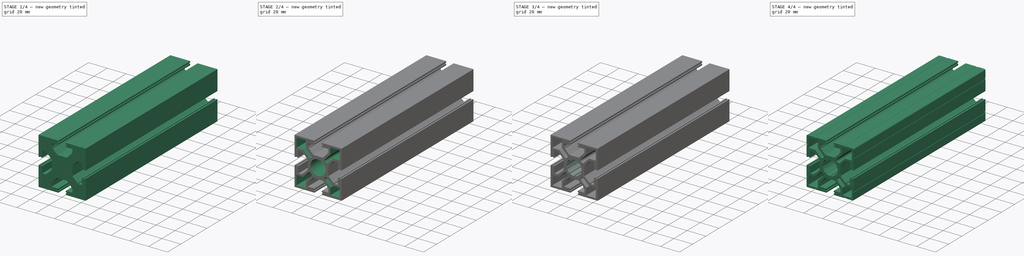
[diagram: build sequence overview — one tinted view per stage of 4, left to right]
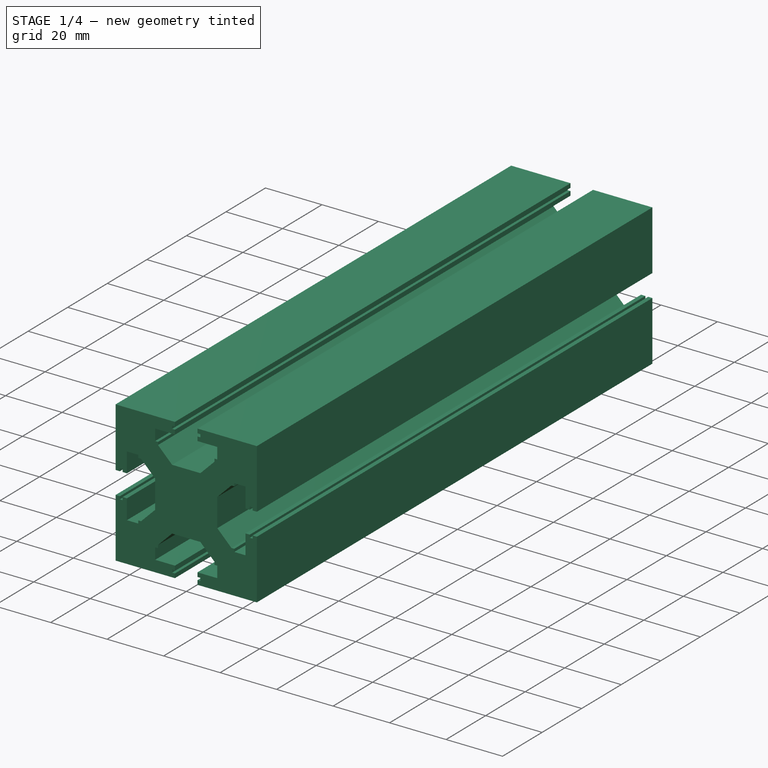
[diagram: stage 1 of 4 — iso view after this stage's code; geometry added in this stage tinted green]
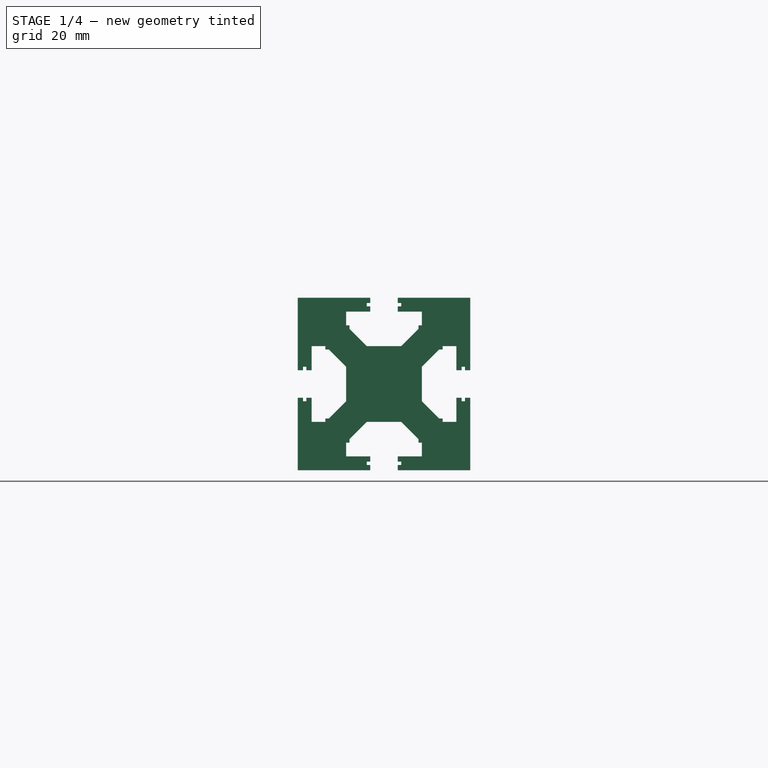
[diagram: stage 1 of 4 — front view after this stage's code; geometry added in this stage tinted green]
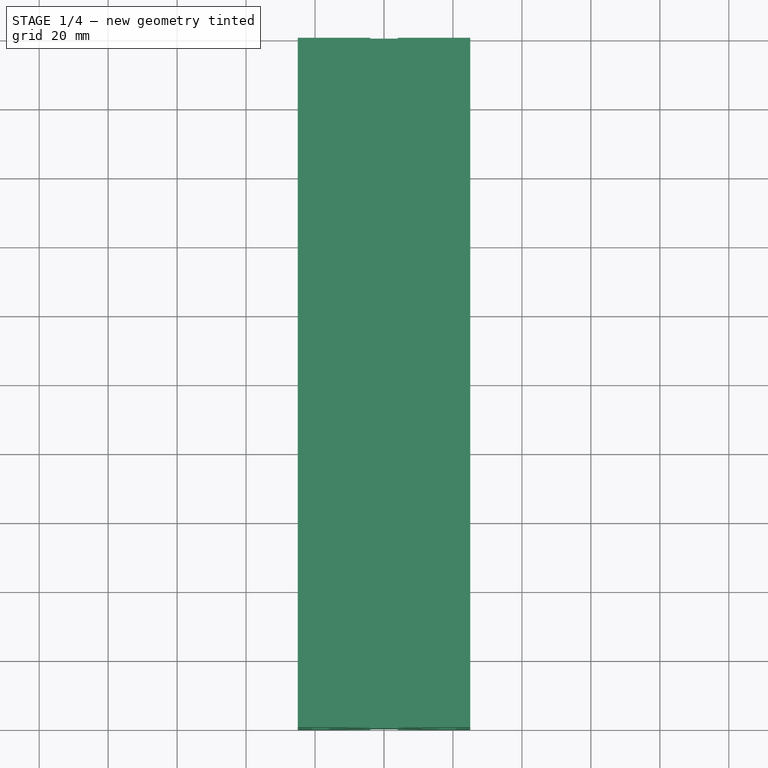
[diagram: stage 1 of 4 — top view after this stage's code; geometry added in this stage tinted green]
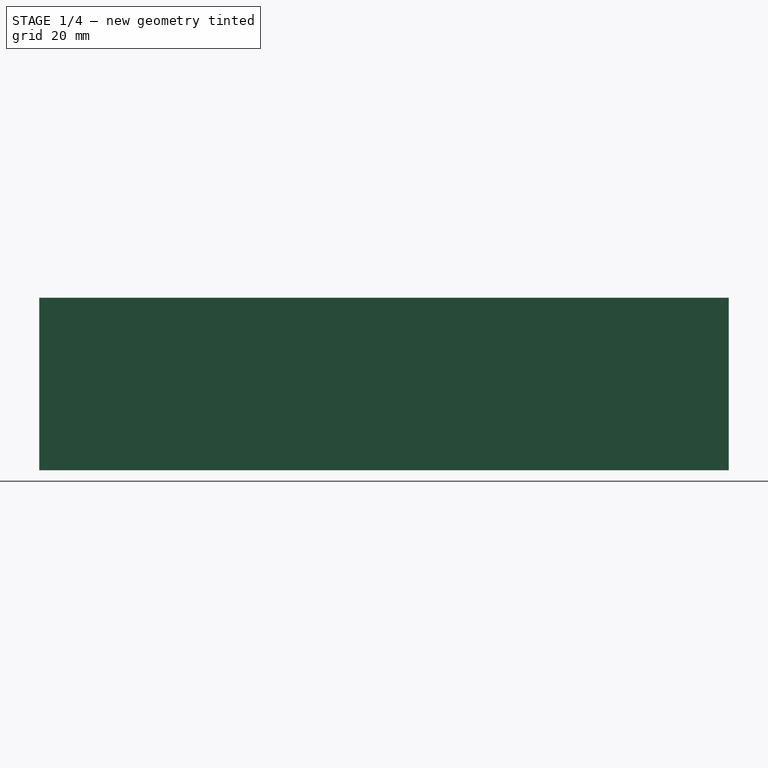
[diagram: stage 1 of 4 — right view after this stage's code; geometry added in this stage tinted green]
FCSTD DOCUMENT  (FreeCAD 0.19R24276 (Git))
Label: extrusion
License: All rights reserved
LicenseURL: http://en.wikipedia.org/wiki/All_rights_reserved
objects: Sketcher::SketchObject×6, PartDesign::Pocket×4, PartDesign::PolarPattern×4, PartDesign::Pad×2, PartDesign::Fillet×1, PartDesign::Body×1
note: 25 computed .brp shape members not serialized (recipe doc carries the construction recipe); baked Part::Feature solids carry a one-line shape summary decoded from their .brp

FEATURE [Sketcher::SketchObject] Sketch
  FullyConstrained = true
  MapMode = 5
  Placement = pos=(0,0,0) rot=(1,0,0;1.5708rad)
  Support = -> [XZ_Plane]
  sketch-geometry (4):
    g0: LineSegment StartX=-25 StartY=25 StartZ=0 EndX=25 EndY=25 EndZ=0
    g1: LineSegment StartX=25 StartY=25 StartZ=0 EndX=25 EndY=-25 EndZ=0
    g2: LineSegment StartX=25 StartY=-25 StartZ=0 EndX=-25 EndY=-25 EndZ=0
    g3: LineSegment StartX=-25 StartY=-25 StartZ=0 EndX=-25 EndY=25 EndZ=0
  constraints (11):
    c: Coincident(g0,g1)
    c: Coincident(g1,g2)
    c: Coincident(g2,g3)
    c: Coincident(g3,g0)
    c: Horizontal(g0)
    c: Horizontal(g2)
    c: Vertical(g1)
    c: Vertical(g3)
    c: Symmetric(g0,g1,g-1)
    c: Equal(g0,g1)
    c: DistanceX(g0,g0) = 50
FEATURE [PartDesign::Pad] Pad
  Direction = (1,1,1)
  Length = 200
  Length2 = 100
  Midplane = true
  Placement = pos=(0,0,0) rot=(1,0,0;1.5708rad)
  Profile = -> Sketch
  Type = 0
FEATURE [Sketcher::SketchObject] Sketch001
  ExternalGeometry = -> [Pad]
  FullyConstrained = true
  MapMode = 5
  Placement = pos=(0,0,0) rot=(1,0,0;1.5708rad)
  Support = -> [XZ_Plane]
  sketch-geometry (36):
    g0: LineSegment StartX=-4 StartY=25 StartZ=0 EndX=4 EndY=25 EndZ=0
    g1: LineSegment StartX=4 StartY=25 StartZ=0 EndX=4 EndY=21 EndZ=0
    g2: LineSegment StartX=4 StartY=21 StartZ=0 EndX=-4 EndY=21 EndZ=0
    g3: LineSegment StartX=-4 StartY=21 StartZ=0 EndX=-4 EndY=25 EndZ=0
    g4: LineSegment StartX=-11 StartY=21 StartZ=0 EndX=11 EndY=21 EndZ=0
    g5: LineSegment StartX=11 StartY=21 StartZ=0 EndX=11 EndY=17 EndZ=0
    g6: LineSegment StartX=11 StartY=17 StartZ=0 EndX=-11 EndY=17 EndZ=0
    g7: LineSegment StartX=-11 StartY=17 StartZ=0 EndX=-11 EndY=21 EndZ=0
    g8: LineSegment StartX=-5 StartY=11 StartZ=0 EndX=5 EndY=11 EndZ=0
    g9: LineSegment StartX=-5 StartY=23.5 StartZ=0 EndX=5 EndY=23.5 EndZ=0
    g10: LineSegment StartX=5 StartY=23.5 StartZ=0 EndX=5 EndY=22.5 EndZ=0
    g11: LineSegment StartX=5 StartY=22.5 StartZ=0 EndX=-5 EndY=22.5 EndZ=0
    g12: LineSegment StartX=-5 StartY=22.5 StartZ=0 EndX=-5 EndY=23.5 EndZ=0
    g13: LineSegment StartX=-4 StartY=25 StartZ=0 EndX=4 EndY=25 EndZ=0
    g14: LineSegment StartX=-4 StartY=25 StartZ=0 EndX=4 EndY=25 EndZ=0
    g15: LineSegment StartX=4 StartY=25 StartZ=0 EndX=4 EndY=23.5 EndZ=0
    g16: LineSegment StartX=4 StartY=23.5 StartZ=0 EndX=5 EndY=23.5 EndZ=0
    g17: LineSegment StartX=5 StartY=23.5 StartZ=0 EndX=5 EndY=22.5 EndZ=0
    g18: LineSegment StartX=5 StartY=22.5 StartZ=0 EndX=4 EndY=22.5 EndZ=0
    g19: LineSegment StartX=4 StartY=22.5 StartZ=0 EndX=4 EndY=21 EndZ=0
    g20: LineSegment StartX=4 StartY=21 StartZ=0 EndX=11 EndY=21 EndZ=0
    g21: LineSegment StartX=11 StartY=21 StartZ=0 EndX=11 EndY=17 EndZ=0
    g22: LineSegment StartX=11 StartY=17 StartZ=0 EndX=10 EndY=17 EndZ=0
    g23: LineSegment StartX=5 StartY=11 StartZ=0 EndX=-5 EndY=11 EndZ=0
    g24: LineSegment StartX=-10 StartY=17 StartZ=0 EndX=-11 EndY=17 EndZ=0
    g25: LineSegment StartX=-11 StartY=17 StartZ=0 EndX=-11 EndY=21 EndZ=0
    g26: LineSegment StartX=-11 StartY=21 StartZ=0 EndX=-4 EndY=21 EndZ=0
    g27: LineSegment StartX=-4 StartY=21 StartZ=0 EndX=-4 EndY=22.5 EndZ=0
    g28: LineSegment StartX=-4 StartY=22.5 StartZ=0 EndX=-5 EndY=22.5 EndZ=0
    g29: LineSegment StartX=-5 StartY=22.5 StartZ=0 EndX=-5 EndY=23.5 EndZ=0
    g30: LineSegment StartX=-5 StartY=23.5 StartZ=0 EndX=-4 EndY=23.5 EndZ=0
    g31: LineSegment StartX=-4 StartY=23.5 StartZ=0 EndX=-4 EndY=25 EndZ=0
    g32: LineSegment StartX=-10 StartY=17 StartZ=0 EndX=-10 EndY=16 EndZ=0
    g33: LineSegment StartX=-10 StartY=16 StartZ=0 EndX=-5 EndY=11 EndZ=0
    g34: LineSegment StartX=5 StartY=11 StartZ=0 EndX=10 EndY=16 EndZ=0
    g35: LineSegment StartX=10 StartY=16 StartZ=0 EndX=10 EndY=17 EndZ=0
  constraints (90):
    c: Coincident(g0,g1)
    c: Coincident(g1,g2)
    c: Coincident(g2,g3)
    c: Coincident(g3,g0)
    c: Horizontal(g2)
    c: Vertical(g1)
    c: Vertical(g3)
    c: Coincident(g4,g5)
    c: Coincident(g5,g6)
    c: Coincident(g6,g7)
    c: Coincident(g7,g4)
    c: Vertical(g5)
    c: Vertical(g7)
    c: Symmetric(g0,g0,g-2)
    c: Symmetric(g4,g4,g-2)
    c: Symmetric(g8,g8,g-2)
    c: PointOnObject(g0,g-3)
    c: DistanceY(g1,g1) = 4
    c: DistanceY(g5,g5) = 4
    c: DistanceY(g8,g0) = 14
    c: Coincident(g9,g10)
    c: Coincident(g10,g11)
    c: Coincident(g11,g12)
    c: Coincident(g12,g9)
    c: Horizontal(g11)
    c: Vertical(g10)
    c: Vertical(g12)
    c: Symmetric(g9,g9,g-2)
    c: DistanceY(g12,g12) = 1
    c: DistanceY(g9,g0) = 1.5
    c: DistanceX(g9,g9) = 10
    c: DistanceX(g0,g0) = 8
    c: DistanceX(g6,g6) = 22
    c: DistanceX(g8,g8) = 10
    c: Coincident(g0,g13)
    c: Coincident(g0,g14)
    c: Coincident(g14,g0)
    c: Coincident(g14,g15)
    c: PointOnObject(g15,g1)
    c: Coincident(g15,g16)
    c: Coincident(g16,g9)
    c: Horizontal(g16)
    c: Coincident(g16,g17)
    c: Coincident(g17,g10)
    c: Coincident(g17,g18)
    c: PointOnObject(g18,g11)
    c: Coincident(g18,g19)
    c: Coincident(g19,g1)
    c: Vertical(g19)
    c: Coincident(g19,g20)
    c: Coincident(g20,g4)
    c: Horizontal(g20)
    c: Coincident(g20,g21)
    c: Coincident(g21,g5)
    c: Coincident(g21,g22)
    c: Coincident(g23,g8)
    c: Coincident(g24,g6)
    c: Coincident(g24,g25)
    c: Coincident(g25,g4)
    c: Coincident(g25,g26)
    c: Coincident(g26,g2)
    c: Coincident(g26,g27)
    c: PointOnObject(g27,g11)
    c: Coincident(g27,g28)
    c: Coincident(g28,g11)
    c: Coincident(g28,g29)
    c: Coincident(g29,g9)
    c: Coincident(g29,g30)
    c: PointOnObject(g30,g9)
    c: Coincident(g30,g31)
    c: Coincident(g31,g14)
    c: Coincident(g32,g24)
    c: Coincident(g33,g32)
    c: Coincident(g33,g23)
    c: Coincident(g34,g23)
    c: Coincident(g35,g34)
    c: Coincident(g35,g22)
    c: Vertical(g32)
    c: Vertical(g35)
    c: Horizontal(g24)
    c: Horizontal(g22)
    c: Equal(g24,g32)
    c: Equal(g32,g35)
    c: Equal(g35,g22)
    c: DistanceX(g24,g24) = 1
    c: Vertical(g27)
    c: Vertical(g31)
    c: Coincident(g13,g14)
    c: Coincident(g23,g8)
    c: Horizontal(g6)
FEATURE [PartDesign::Pocket] Pocket
  BaseFeature = -> Pad
  Length = 5
  Length2 = 100
  Midplane = true
  Placement = pos=(0,0,0) rot=(1,0,0;1.5708rad)
  Profile = -> Sketch001
  Type = 1
FEATURE [PartDesign::PolarPattern] PolarPattern
  Angle = 360
  Axis = -> Sketch001 [N_Axis]
  BaseFeature = -> Pocket
  Occurrences = 4
  Originals = -> [Pocket]
  Placement = pos=(0,0,0) rot=(1,0,0;1.5708rad)
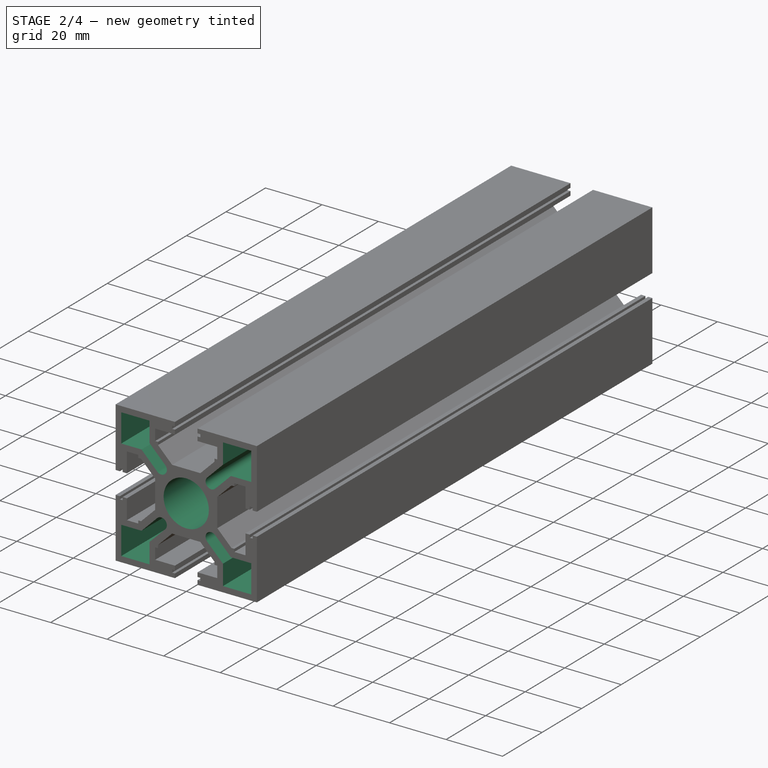
[diagram: stage 2 of 4 — iso view after this stage's code; geometry added in this stage tinted green]
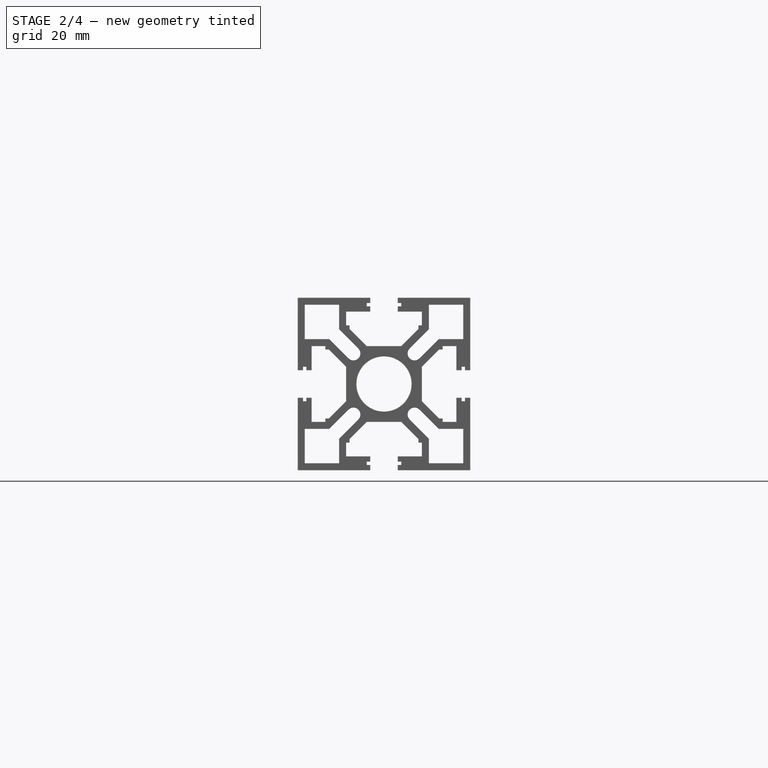
[diagram: stage 2 of 4 — front view after this stage's code; geometry added in this stage tinted green]
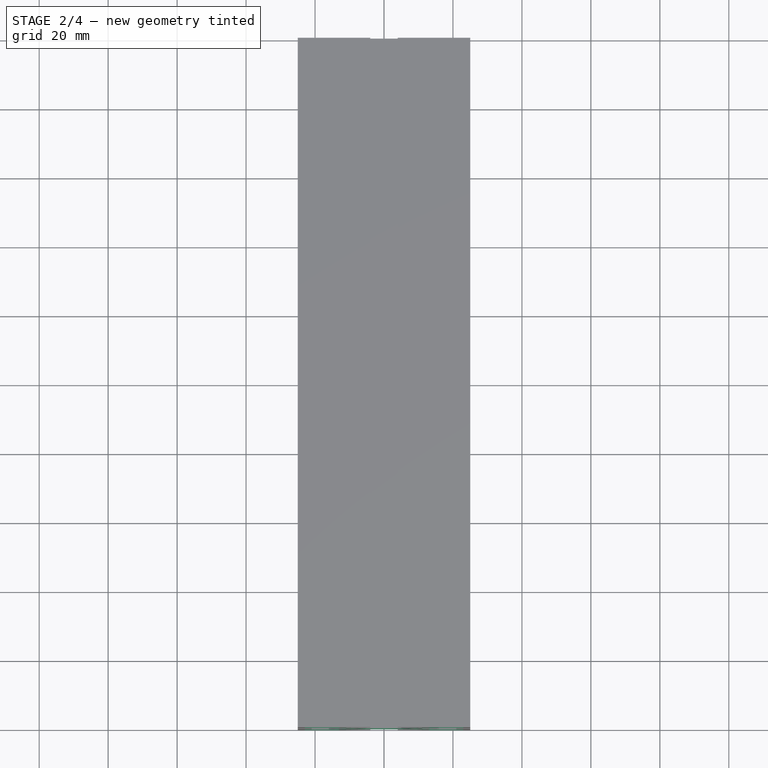
[diagram: stage 2 of 4 — top view after this stage's code; geometry added in this stage tinted green]
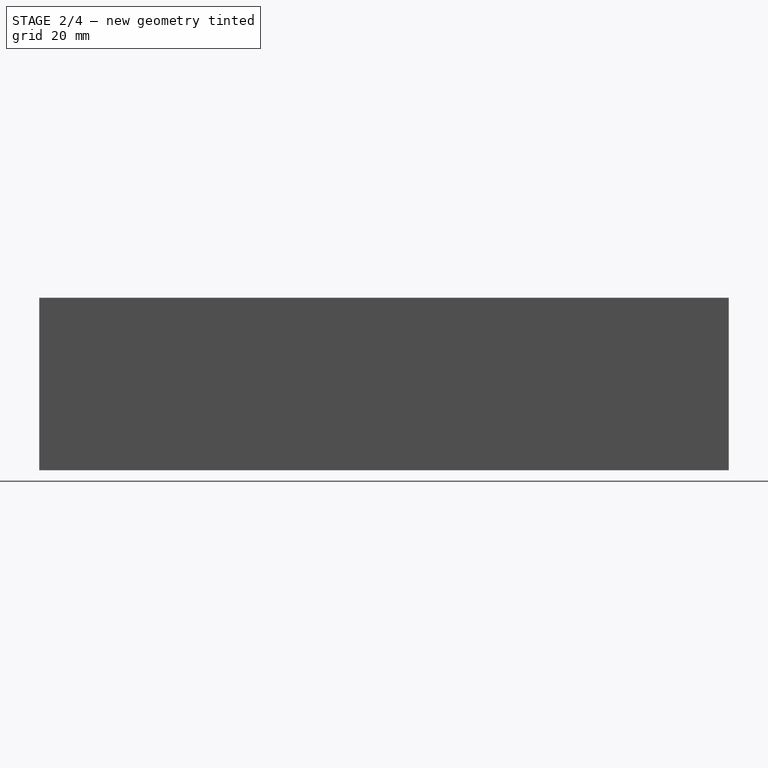
[diagram: stage 2 of 4 — right view after this stage's code; geometry added in this stage tinted green]
FEATURE [Sketcher::SketchObject] Sketch002
  ExternalGeometry = -> [PolarPattern]
  FullyConstrained = true
  MapMode = 5
  Placement = pos=(0,0,0) rot=(1,0,0;1.5708rad)
  Support = -> [XZ_Plane]
  sketch-geometry (13):
    g0: LineSegment StartX=-23 StartY=23 StartZ=0 EndX=-13 EndY=23 EndZ=0
    g1: LineSegment StartX=-13 StartY=23 StartZ=0 EndX=-13 EndY=13 EndZ=0
    g2: LineSegment StartX=-13 StartY=13 StartZ=0 EndX=-23 EndY=13 EndZ=0
    g3: LineSegment StartX=-23 StartY=13 StartZ=0 EndX=-23 EndY=23 EndZ=0
    g4: LineSegment StartX=-13 StartY=13 StartZ=0 EndX=-8.85786 EndY=8.85786 EndZ=0
    g5: ArcOfCircle CenterX=-8.85786 CenterY=8.85786 CenterZ=0 NormalX=0 NormalY=0 NormalZ=1 AngleXU=0 Radius=2 StartAngle=3.92699 EndAngle=7.06858
    g6: LineSegment StartX=-23 StartY=23 StartZ=0 EndX=-13 EndY=23 EndZ=0
    g7: LineSegment StartX=-13 StartY=23 StartZ=0 EndX=-13 EndY=15.8284 EndZ=0
    g8: LineSegment StartX=-13 StartY=15.8284 StartZ=0 EndX=-7.44365 EndY=10.2721 EndZ=0
    g9: LineSegment StartX=-23 StartY=23 StartZ=0 EndX=-23 EndY=13 EndZ=0
    g10: LineSegment StartX=-23 StartY=13 StartZ=0 EndX=-15.8284 EndY=13 EndZ=0
    g11: LineSegment StartX=-15.8284 StartY=13 StartZ=0 EndX=-10.2721 EndY=7.44365 EndZ=0
    g12: LineSegment StartX=-15.8284 StartY=13 StartZ=0 EndX=-13 EndY=15.8284 EndZ=0
  constraints (33):
    c: Coincident(g0,g1)
    c: Coincident(g1,g2)
    c: Coincident(g2,g3)
    c: Coincident(g3,g0)
    c: Horizontal(g0)
    c: Horizontal(g2)
    c: Vertical(g1)
    c: Vertical(g3)
    c: Coincident(g4,g1)
    c: Angle(g4,g1) = 2.35619
    c: DistanceX(g-3,g0) = 2
    c: DistanceY(g0,g-3) = 2
    c: Equal(g3,g0)
    c: DistanceY(g3,g3) = 10
    c: Distance(g0,g4) = 20
    c: Radius(g5) = 2
    c: Coincident(g5,g4)
    c: Symmetric(g5,g5,g5)
    c: Coincident(g0,g6)
    c: Coincident(g6,g0)
    c: Coincident(g6,g7)
    c: PointOnObject(g7,g1)
    c: Coincident(g7,g8)
    c: Coincident(g6,g9)
    c: Coincident(g9,g2)
    c: Coincident(g9,g10)
    c: PointOnObject(g10,g2)
    c: Coincident(g10,g11)
    c: Tangent(g11,g5) = -1.5708
    c: Tangent(g8,g5) = 1.5708
    c: Coincident(g12,g10)
    c: Coincident(g12,g7)
    c: Distance(g12) = 4
FEATURE [PartDesign::Pocket] Pocket001
  BaseFeature = -> PolarPattern
  Length = 5
  Length2 = 100
  Midplane = true
  Placement = pos=(0,0,0) rot=(1,0,0;1.5708rad)
  Profile = -> Sketch002
  Type = 1
FEATURE [PartDesign::PolarPattern] PolarPattern001
  Angle = 360
  Axis = -> Sketch002 [N_Axis]
  BaseFeature = -> Pocket001
  Occurrences = 4
  Originals = -> [Pocket001]
  Placement = pos=(0,0,0) rot=(1,0,0;1.5708rad)
FEATURE [Sketcher::SketchObject] Sketch003
  FullyConstrained = true
  MapMode = 5
  Placement = pos=(0,0,0) rot=(1,0,0;1.5708rad)
  Support = -> [XZ_Plane]
  sketch-geometry (1):
    g0: Circle CenterX=0 CenterY=0 CenterZ=0 NormalX=0 NormalY=0 NormalZ=1 AngleXU=0 Radius=8
  constraints (2):
    c: Coincident(g0,g-1)
    c: Radius(g0) = 8
FEATURE [PartDesign::Pocket] Pocket002
  BaseFeature = -> PolarPattern001
  Length = 5
  Length2 = 100
  Midplane = true
  Placement = pos=(0,0,0) rot=(1,0,0;1.5708rad)
  Profile = -> Sketch003
  Type = 1
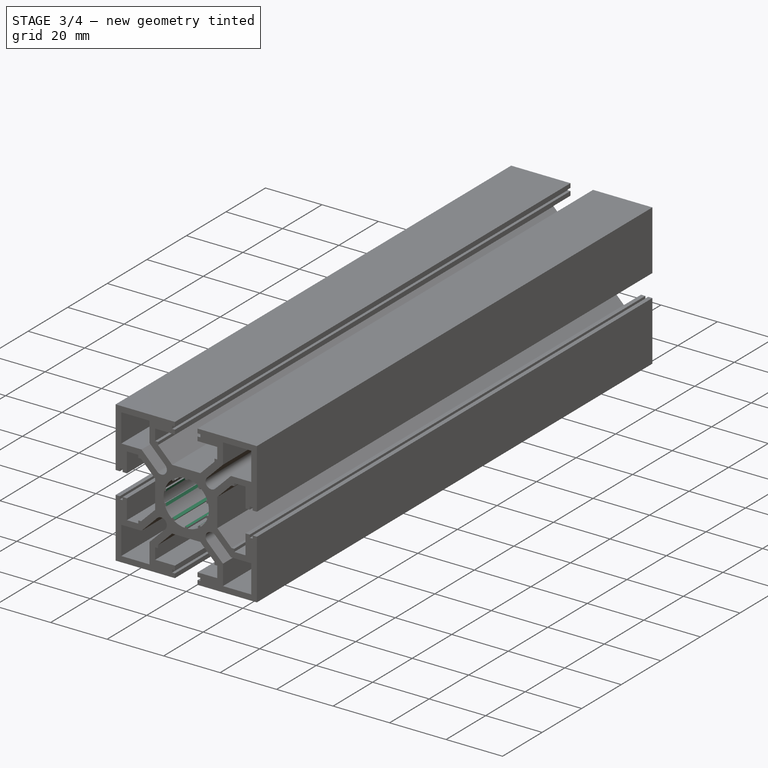
[diagram: stage 3 of 4 — iso view after this stage's code; geometry added in this stage tinted green]
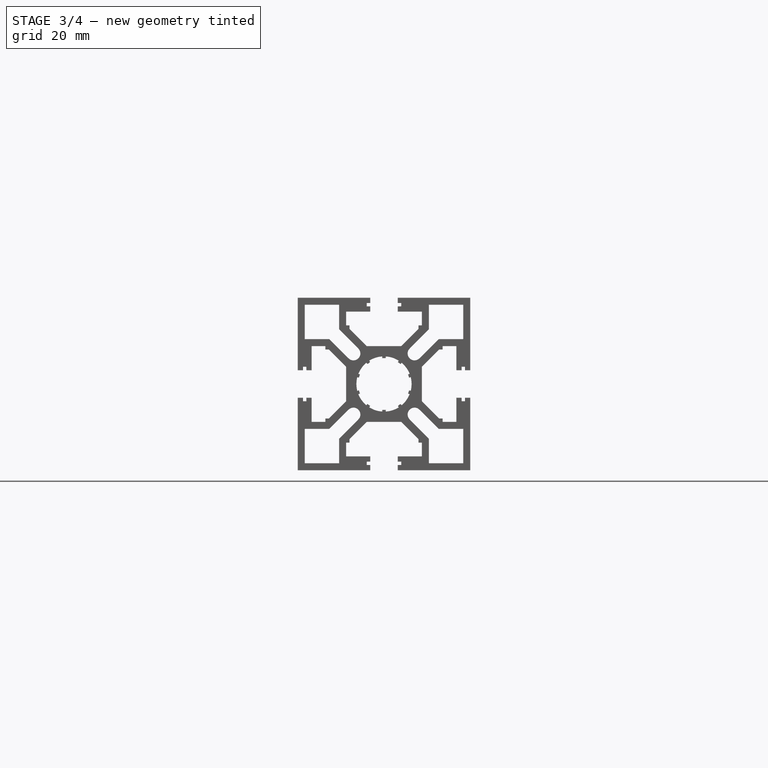
[diagram: stage 3 of 4 — front view after this stage's code; geometry added in this stage tinted green]
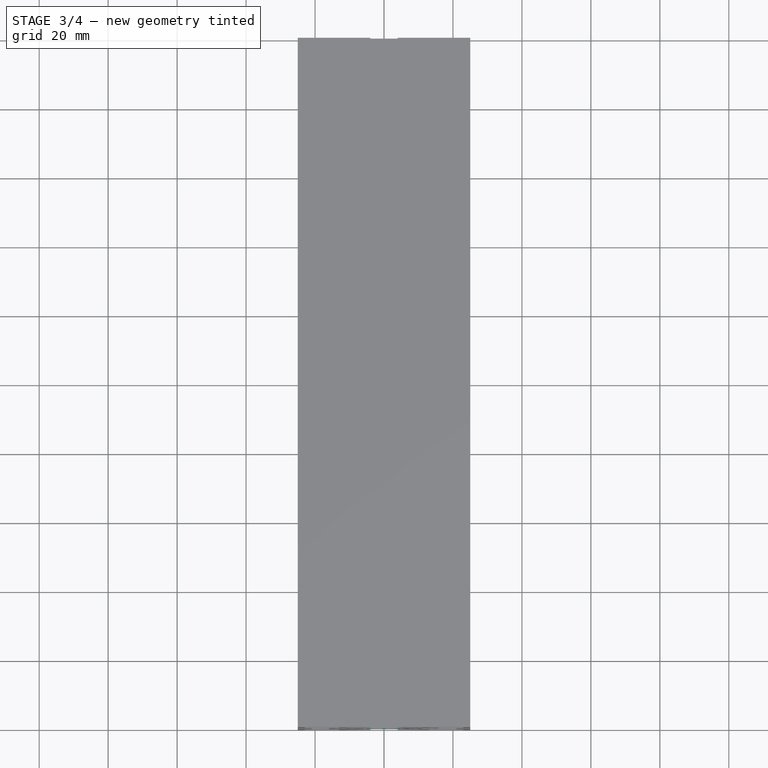
[diagram: stage 3 of 4 — top view after this stage's code; geometry added in this stage tinted green]
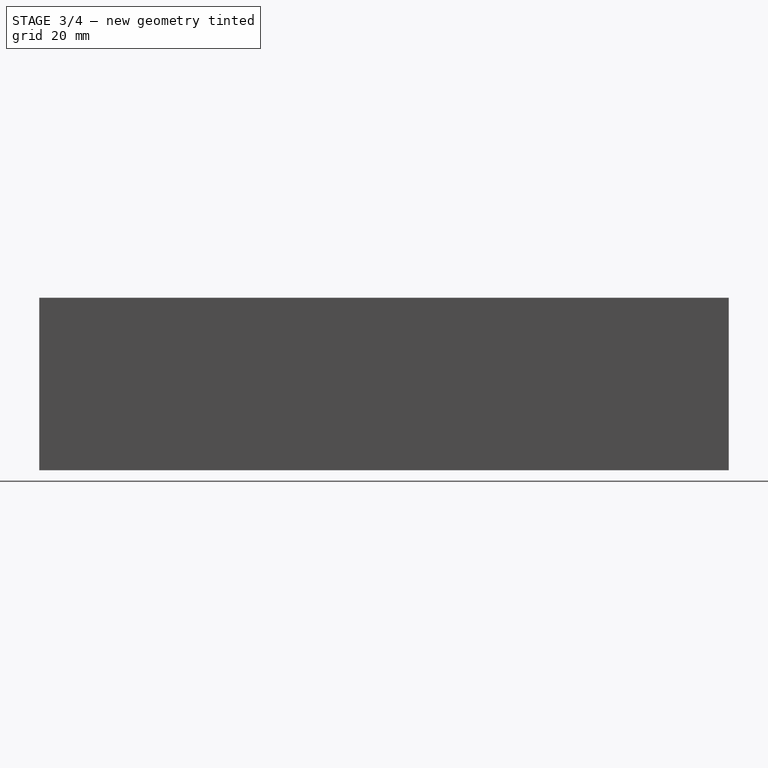
[diagram: stage 3 of 4 — right view after this stage's code; geometry added in this stage tinted green]
FEATURE [Sketcher::SketchObject] Sketch004
  FullyConstrained = true
  MapMode = 5
  Placement = pos=(0,0,0) rot=(1,0,0;1.5708rad)
  Support = -> [XZ_Plane]
  sketch-geometry (4):
    g0: LineSegment StartX=-0.5 StartY=8.5 StartZ=0 EndX=0.5 EndY=8.5 EndZ=0
    g1: LineSegment StartX=0.5 StartY=8.5 StartZ=0 EndX=0.5 EndY=7.5 EndZ=0
    g2: LineSegment StartX=0.5 StartY=7.5 StartZ=0 EndX=-0.5 EndY=7.5 EndZ=0
    g3: LineSegment StartX=-0.5 StartY=7.5 StartZ=0 EndX=-0.5 EndY=8.5 EndZ=0
  constraints (11):
    c: Coincident(g0,g1)
    c: Coincident(g1,g2)
    c: Coincident(g2,g3)
    c: Coincident(g3,g0)
    c: Horizontal(g2)
    c: Vertical(g1)
    c: Vertical(g3)
    c: Symmetric(g0,g0,g-2)
    c: Equal(g3,g2)
    c: DistanceY(g1,g1) = 1
    c: DistanceY(g-1,g2) = 7.5
FEATURE [PartDesign::Pad] Pad001
  BaseFeature = -> Pocket002
  Direction = (1,1,1)
  Length = 200
  Length2 = 100
  Midplane = true
  Placement = pos=(0,0,0) rot=(1,0,0;1.5708rad)
  Profile = -> Sketch004
  Type = 0
FEATURE [PartDesign::PolarPattern] PolarPattern002
  Angle = 360
  Axis = -> Y_Axis
  BaseFeature = -> Pad001
  Occurrences = 10
  Originals = -> [Pad001]
  Placement = pos=(0,0,0) rot=(1,0,0;1.5708rad)
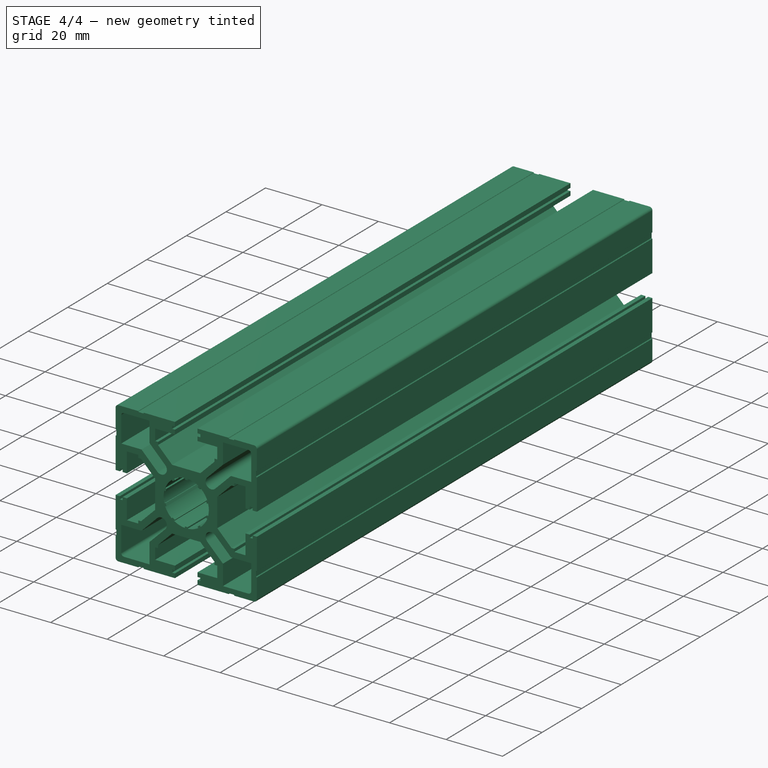
[diagram: stage 4 of 4 — iso view after this stage's code; geometry added in this stage tinted green]
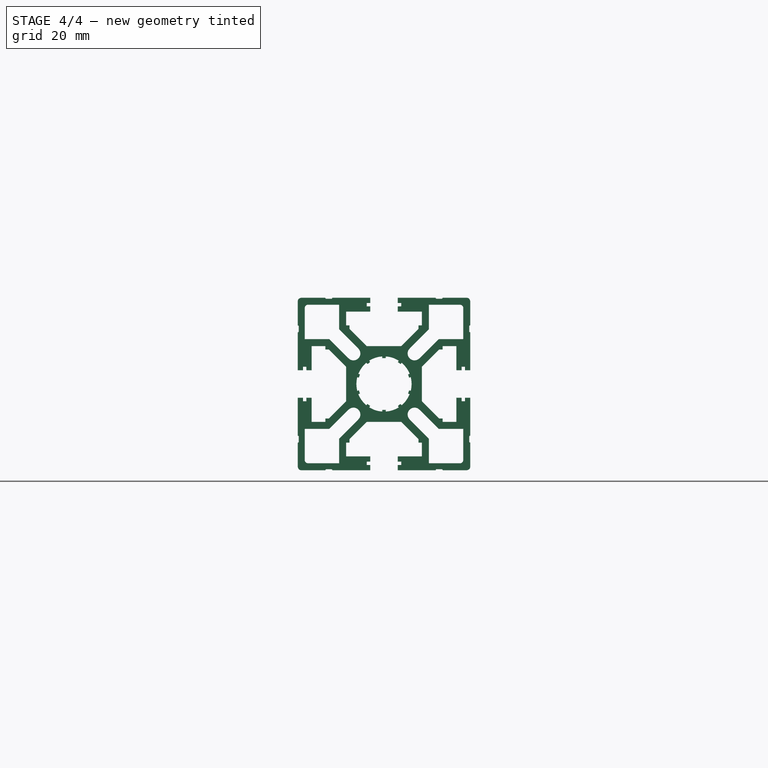
[diagram: stage 4 of 4 — front view after this stage's code; geometry added in this stage tinted green]
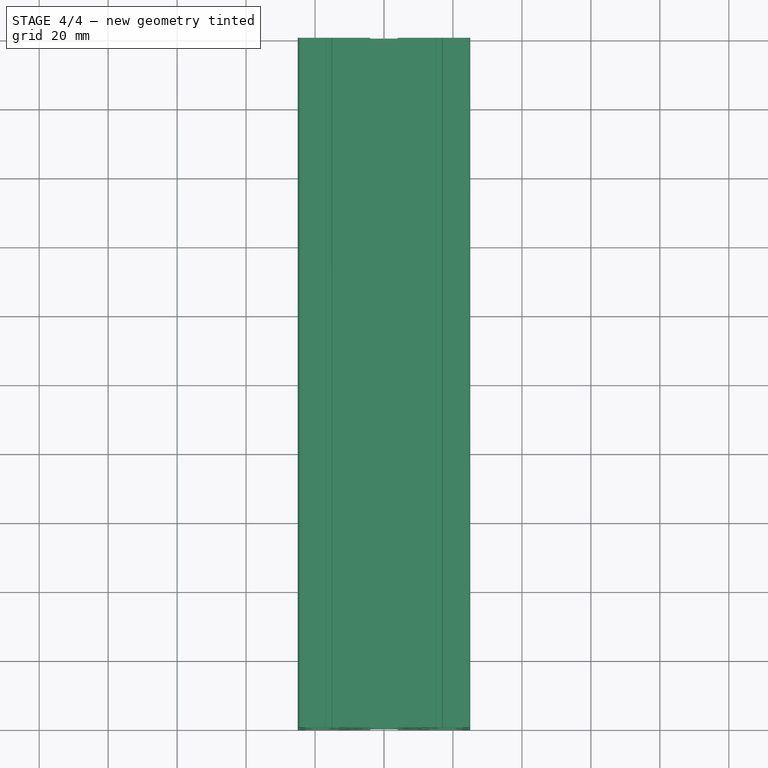
[diagram: stage 4 of 4 — top view after this stage's code; geometry added in this stage tinted green]
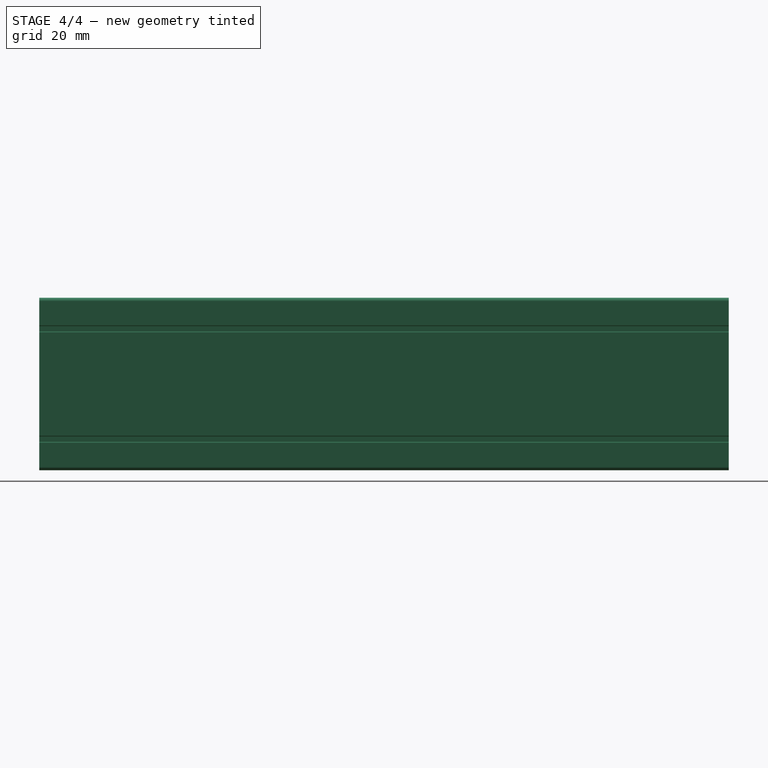
[diagram: stage 4 of 4 — right view after this stage's code; geometry added in this stage tinted green]
FEATURE [PartDesign::Fillet] Fillet
  Base = -> PolarPattern002 [Edge423,Edge4,Edge416,Edge413,Edge430,Edge370,Edge468,Edge327]
  BaseFeature = -> PolarPattern002
  Placement = pos=(0,0,0) rot=(1,0,0;1.5708rad)
  Radius = 1
  SupportTransform = false
FEATURE [Sketcher::SketchObject] Sketch005
  ExternalGeometry = -> [Fillet]
  FullyConstrained = false
  MapMode = 5
  Placement = pos=(0,0,0) rot=(1,0,0;1.5708rad)
  Support = -> [XZ_Plane]
  sketch-geometry (12):
    g0: LineSegment StartX=-17 StartY=27 StartZ=0 EndX=-15 EndY=27 EndZ=0
    g1: LineSegment StartX=-15 StartY=27 StartZ=0 EndX=-15 EndY=25 EndZ=0
    g2: LineSegment StartX=-15.2819 StartY=24.7181 StartZ=0 EndX=-16.7181 EndY=24.7181 EndZ=0
    g3: LineSegment StartX=-17 StartY=25 StartZ=0 EndX=-17 EndY=27 EndZ=0
    g4: LineSegment StartX=15 StartY=27 StartZ=0 EndX=17 EndY=27 EndZ=0
    g5: LineSegment StartX=17 StartY=27 StartZ=0 EndX=17 EndY=25 EndZ=0
    g6: LineSegment StartX=16.7181 StartY=24.7181 StartZ=0 EndX=15.2819 EndY=24.7181 EndZ=0
    g7: LineSegment StartX=15 StartY=25 StartZ=0 EndX=15 EndY=27 EndZ=0
    g8: ArcOfCircle CenterX=-16.7181 CenterY=25 CenterZ=0 NormalX=0 NormalY=0 NormalZ=1 AngleXU=0 Radius=0.281926 StartAngle=3.14159 EndAngle=4.71239
    g9: ArcOfCircle CenterX=-15.2819 CenterY=25 CenterZ=0 NormalX=0 NormalY=0 NormalZ=1 AngleXU=0 Radius=0.281926 StartAngle=4.71239 EndAngle=6.28319
    g10: ArcOfCircle CenterX=15.2819 CenterY=25 CenterZ=0 NormalX=0 NormalY=0 NormalZ=1 AngleXU=0 Radius=0.281926 StartAngle=3.14159 EndAngle=4.71239
    g11: ArcOfCircle CenterX=16.7181 CenterY=25 CenterZ=0 NormalX=0 NormalY=0 NormalZ=1 AngleXU=0 Radius=0.281926 StartAngle=4.71239 EndAngle=6.28319
  constraints (30):
    c: Coincident(g0,g1)
    c: Coincident(g3,g0)
    c: Horizontal(g0)
    c: Horizontal(g2)
    c: Vertical(g1)
    c: Vertical(g3)
    c: Coincident(g4,g5)
    c: Coincident(g7,g4)
    c: Horizontal(g4)
    c: Horizontal(g6)
    c: Vertical(g5)
    c: Vertical(g7)
    c: Equal(g4,g5)
    c: Equal(g5,g1)
    c: Equal(g1,g0)
    c: DistanceX(g0,g0) = 2
    c: Symmetric(g0,g4,g-2)
    c: DistanceX(g0,g-1) = 15
    c: Tangent(g2,g8) = 1.5708
    c: Tangent(g3,g8) = 1.5708
    c: Tangent(g1,g9) = 1.5708
    c: Tangent(g2,g9) = 1.5708
    c: Tangent(g6,g10) = 1.5708
    c: Tangent(g7,g10) = 1.5708
    c: Tangent(g5,g11) = 1.5708
    c: Tangent(g6,g11) = 1.5708
    c: Equal(g11,g10)
    c: Equal(g10,g8)
    c: Equal(g8,g9)
    c: PointOnObject(g3,g-3)
FEATURE [PartDesign::Pocket] Pocket003
  BaseFeature = -> Fillet
  Length = 5
  Length2 = 100
  Midplane = true
  Placement = pos=(0,0,0) rot=(1,0,0;1.5708rad)
  Profile = -> Sketch005
  Type = 1
FEATURE [PartDesign::PolarPattern] PolarPattern003
  Angle = 360
  Axis = -> Y_Axis
  BaseFeature = -> Pocket003
  Occurrences = 4
  Originals = -> [Pocket003]
  Placement = pos=(0,0,0) rot=(1,0,0;1.5708rad)
FEATURE [PartDesign::Body] Body
  Group = -> [Sketch,Pad,Sketch001,Pocket,PolarPattern,Sketch002,Pocket001,PolarPattern001,Sketch003,Pocket002,Sketch004,Pad001,PolarPattern002,Fillet,Sketch005,Pocket003,PolarPattern003]
  Origin = -> Origin
  Tip = -> PolarPattern003
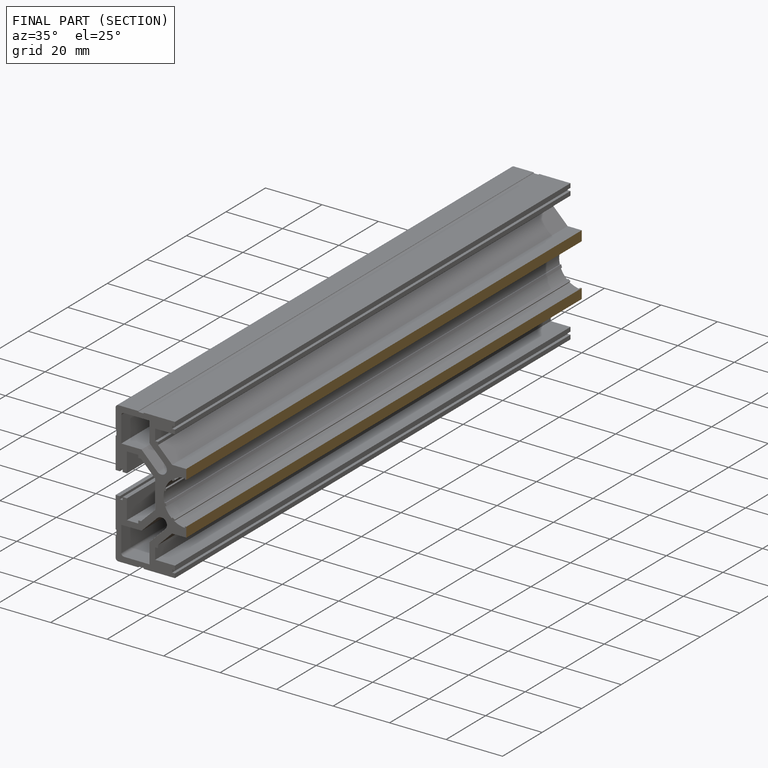
[diagram: finished part — half-section view (interior)]
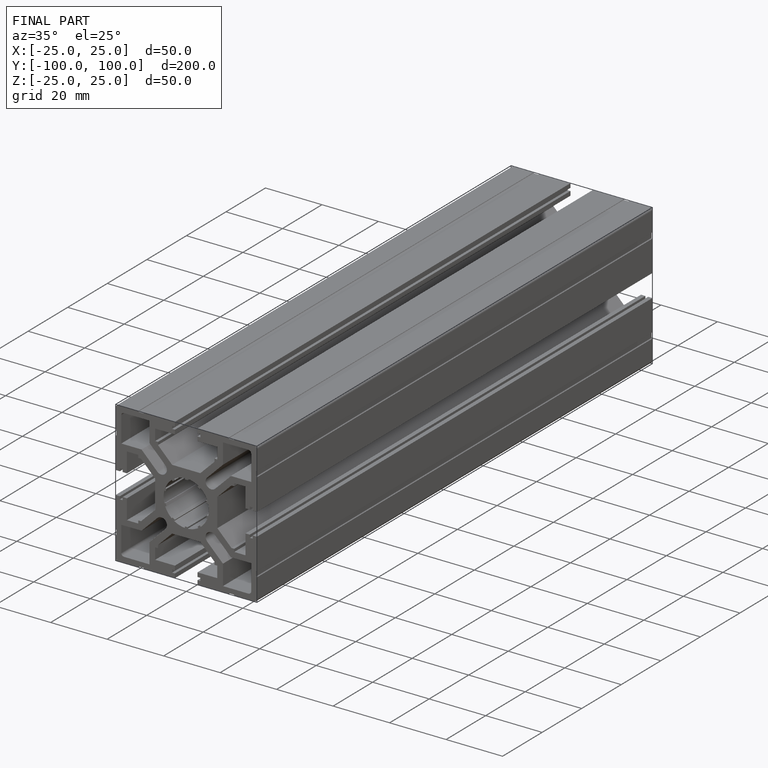
[diagram: finished part — iso view with bounding-box wireframe]
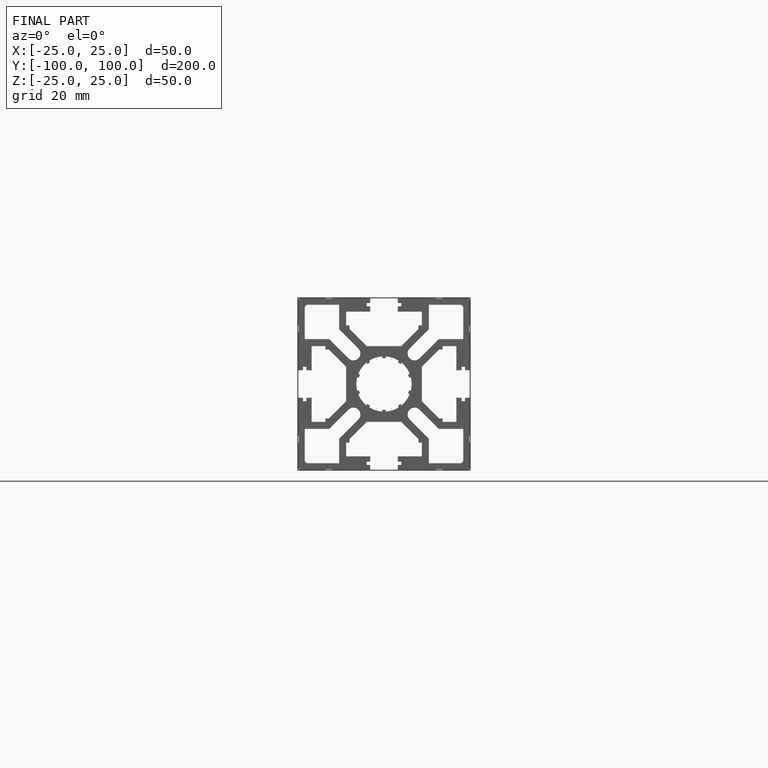
[diagram: finished part — front view with bounding-box wireframe]
